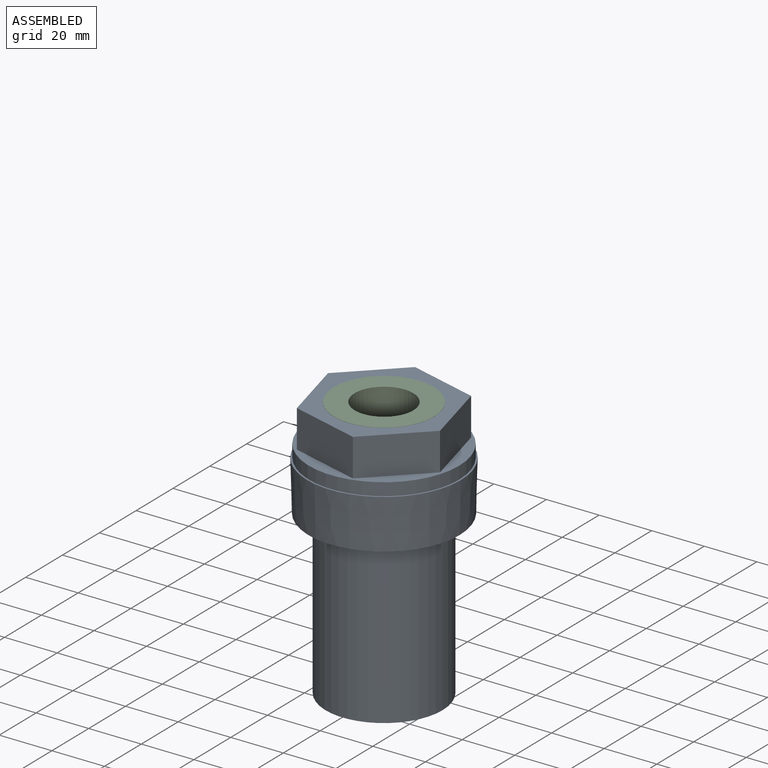
[diagram: assembled view]
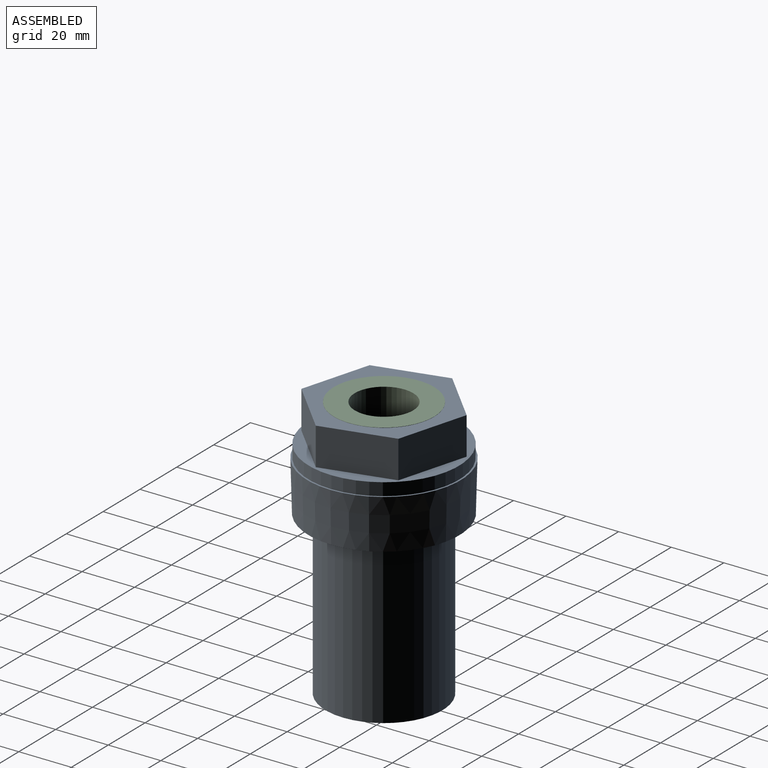
[diagram: assembled view, second angle]
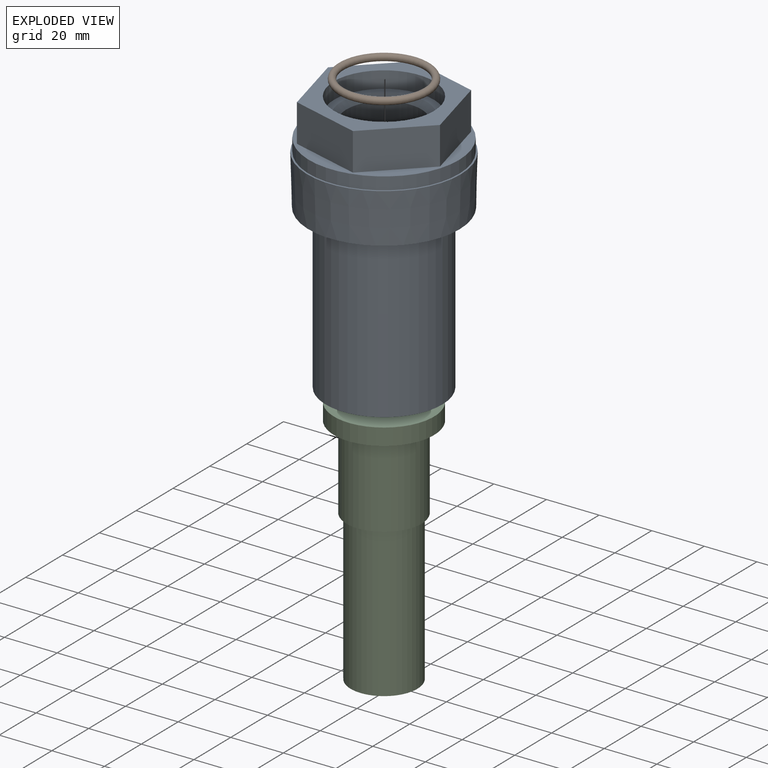
[diagram: exploded view]
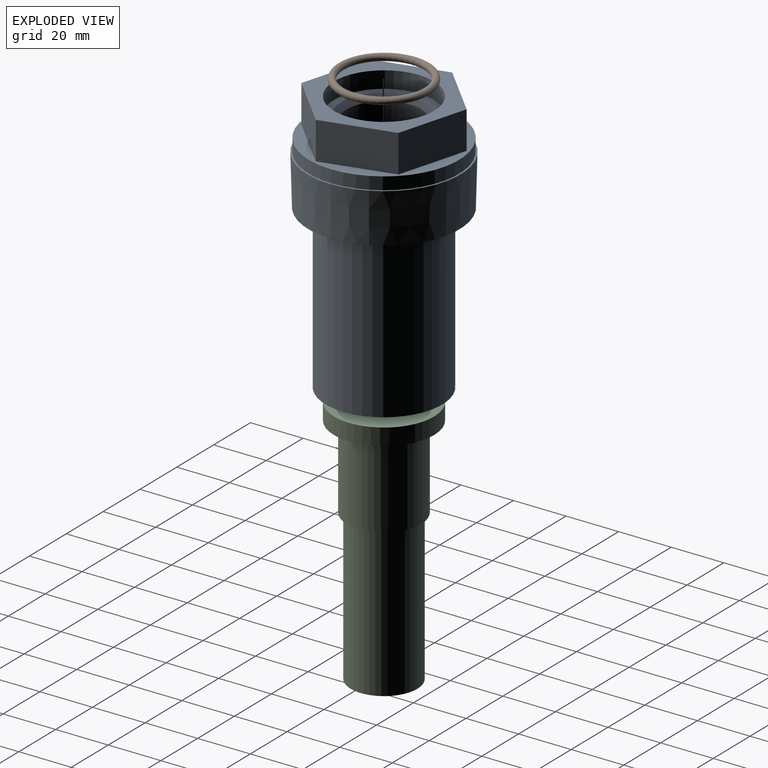
[diagram: exploded view, second angle]
ASSEMBLY  parts=3 mates=2
PART A: 20 faces, bbox 58.4x58.4x100 mm
  f0: plane 57.15x57.15mm, normal (0,0,1), area 600.9mm2, adj f6,f7,f8,f9,f10,f11,f12
  f1: plane 44.45x44.45mm, normal (0,0,-1), area 1045.1mm2, adj f2,f18
  f2: cylinder r=22.23mm len=61.9mm, axis (0,0,-1), area 8643.9mm2, adj f1,f3
  f3: plane 57.4x57.4mm, normal (0,0,-1), area 1036.3mm2, adj f2,f4
  f4: cone r=28.7mm half-angle=1.5deg, axis (0,0,1), area 3467.1mm2, adj f3,f5
  f5: plane 58.42x58.42mm, normal (0,0,1), area 115.3mm2, adj f4,f6
  f6: cylinder r=28.57mm len=57.15mm, axis (0,0,-1), area 857.3mm2, adj f0,f5
  f7: plane 26.63x14.28mm, normal (-0.97,-0.25,0), area 392.5mm2, adj f0,f8,f12,f13
  f8: plane 26.48x14.28mm, normal (-0.27,-0.96,0), area 392.5mm2, adj f0,f7,f9,f13
  f9: plane 19.65x19.23mm, normal (0.7,-0.71,0), area 392.5mm2, adj f0,f8,f10,f13
  f10: plane 26.63x14.28mm, normal (0.97,0.25,0), area 392.5mm2, adj f0,f9,f11,f13
  f11: plane 26.48x14.28mm, normal (0.27,0.96,0), area 392.5mm2, adj f0,f10,f12,f13
  f12: plane 19.65x19.23mm, normal (-0.7,0.71,0), area 392.5mm2, adj f0,f7,f11,f13
  f13: plane 53.27x52.96mm, normal (0,0,1), area 824.2mm2, adj f7,f8,f9,f10,f11,f12,f14
  f14: cylinder r=19.05mm len=38.1mm, axis (0,0,1), area 760.1mm2, adj f13,f15
  f15: plane 38.1x38.1mm, normal (0,0,1), area 303.4mm2, adj f14,f19
  f16: cylinder r=14.29mm len=29.72mm, axis (0,0,1), area 2667.8mm2, adj f17,f19
  f17: plane 28.58x28.58mm, normal (0,0,1), area 134.6mm2, adj f16,f18
  f18: cylinder r=12.7mm len=61.9mm, axis (0,0,1), area 4939.4mm2, adj f1,f17
  f19: cone r=14.29mm half-angle=45deg, axis (0,0,1), area 276.3mm2, adj f15,f16
PART B: 1 faces, bbox 37.9x37.9x2.6 mm
  f0: torus R=16.22mm, axis (0,0,1), area 837.5mm2
PART C: 12 faces, bbox 38.1x38.1x95.3 mm
  f0: cylinder r=10.31mm len=44.45mm, axis (0,0,1), area 2880.1mm2, adj f9,f10
  f1: plane 25.4x25.4mm, normal (0,0,-1), area 374.9mm2, adj f2,f8
  f2: cylinder r=12.7mm len=57.15mm, axis (0,0,-1), area 4560.4mm2, adj f1,f3
  f3: plane 28.58x28.58mm, normal (0,0,-1), area 134.6mm2, adj f2,f4
  f4: cylinder r=14.29mm len=31.75mm, axis (0,0,-1), area 2850.2mm2, adj f3,f5
  f5: plane 38.1x38.1mm, normal (0,0,-1), area 498.8mm2, adj f4,f6
  f6: cylinder r=19.05mm len=38.1mm, axis (0,0,-1), area 760.1mm2, adj f5,f7
  f7: plane 38.1x38.1mm, normal (0,0,1), area 752.1mm2, adj f6,f11
  f8: cylinder r=6.48mm len=23.19mm, axis (0,0,1), area 943.6mm2, adj f1,f9
  f9: cone r=10.31mm half-angle=60deg, axis (0,0,1), area 233.6mm2, adj f0,f8
  f10: plane 22.23x22.23mm, normal (0,0,1), area 53.9mm2, adj f0,f11
  f11: cylinder r=11.11mm len=25.4mm, axis (0,0,1), area 1773.5mm2, adj f7,f10
PLACE A t=(-57.26,-9.24,-18.71)mm
PLACE B t=(-57.26,-9.24,74.32)mm
PLACE C rot(axis=(0,0,1),142.7deg) t=(-57.26,-9.24,-13.88)mm
MATE cylindrical C.f0 <-> A.f16  axis (0,0,-1) through (-57.26,-9.24,59.14)mm
MATE cylindrical B.f0 <-> C.f0  axis (0,0,1) through (-57.26,-9.24,74.32)mm
